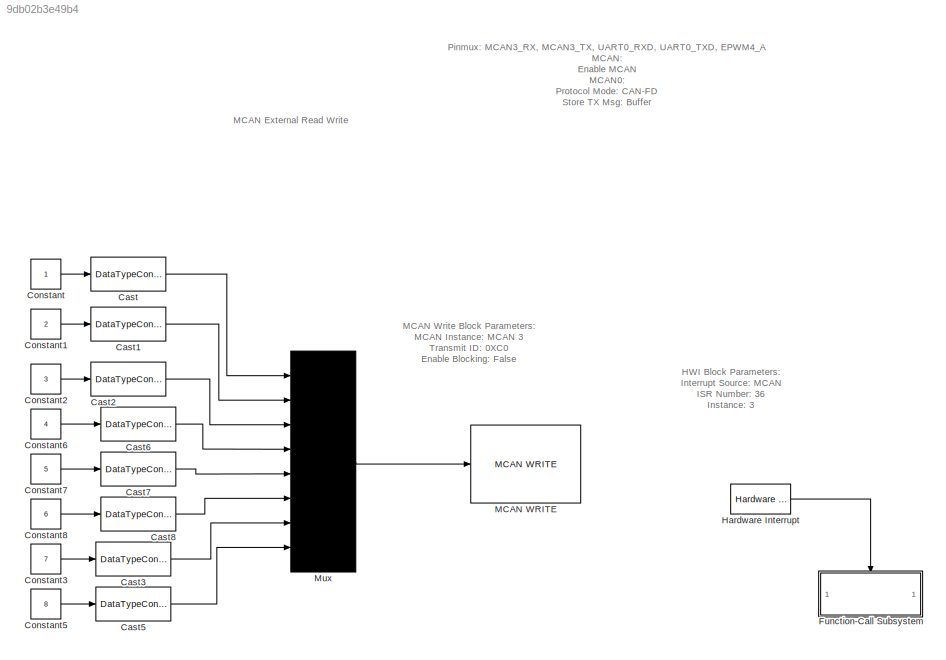
MODEL slx_9db02b3e49b4
KIND model
CONFIG AbsTol = auto
CONFIG EnableMultiTasking = off
CONFIG FixedStep = auto
CONFIG MaxStep = auto
CONFIG MinStep = auto
CONFIG RelTol = 1e-3
CONFIG SampleTimeConstraint = Unconstrained
CONFIG SolverName = FixedStepAuto
CONFIG StartTime = 0.0
CONFIG StopTime = 10.0
BLOCK [DataTypeConversion] Cast
  OutDataTypeStr = uint8
  RndMeth = Floor
  SaturateOnIntegerOverflow = off
BLOCK [DataTypeConversion] Cast1
  OutDataTypeStr = uint8
  RndMeth = Floor
  SaturateOnIntegerOverflow = off
BLOCK [DataTypeConversion] Cast2
  OutDataTypeStr = uint8
  RndMeth = Floor
  SaturateOnIntegerOverflow = off
BLOCK [DataTypeConversion] Cast3
  OutDataTypeStr = uint8
  RndMeth = Floor
  SaturateOnIntegerOverflow = off
BLOCK [DataTypeConversion] Cast5
  OutDataTypeStr = uint8
  RndMeth = Floor
  SaturateOnIntegerOverflow = off
BLOCK [DataTypeConversion] Cast6
  OutDataTypeStr = uint8
  RndMeth = Floor
  SaturateOnIntegerOverflow = off
BLOCK [DataTypeConversion] Cast7
  OutDataTypeStr = uint8
  RndMeth = Floor
  SaturateOnIntegerOverflow = off
BLOCK [DataTypeConversion] Cast8
  OutDataTypeStr = uint8
  RndMeth = Floor
  SaturateOnIntegerOverflow = off
BLOCK [Constant] Constant
BLOCK [Constant] Constant1
  Value = 2
BLOCK [Constant] Constant2
  Value = 3
BLOCK [Constant] Constant3
  Value = 7
BLOCK [Constant] Constant5
  Value = 8
BLOCK [Constant] Constant6
  Value = 4
BLOCK [Constant] Constant7
  Value = 5
BLOCK [Constant] Constant8
  Value = 6
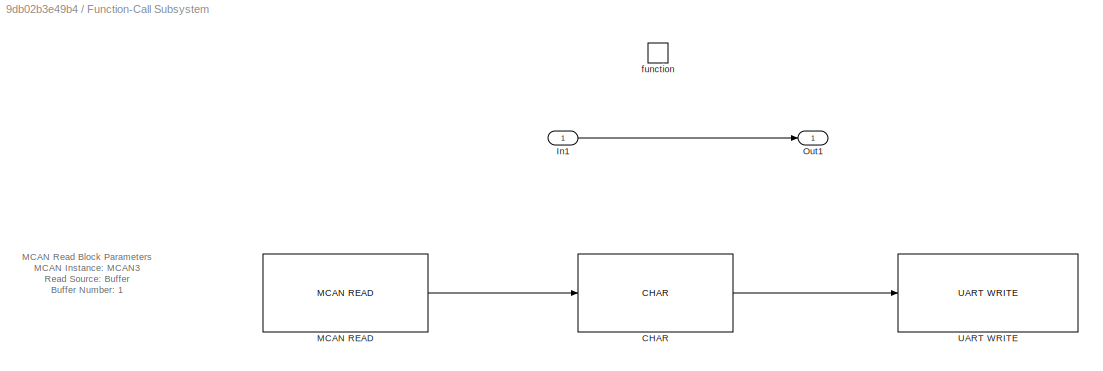
BLOCK [SubSystem] Function-Call Subsystem
  TreatAsAtomicUnit = on
BLOCK [Reference] Function-Call Subsystem/CHAR  REF=peripheral_library_blocks_am263px/CHAR
  SourceBlock = peripheral_library_blocks_am263px/CHAR
  SourceType = CHAR
BLOCK [Inport] Function-Call Subsystem/In1
BLOCK [Reference] Function-Call Subsystem/MCAN READ  REF=peripheral_library_blocks_am263px/MCAN READ
  SourceBlock = peripheral_library_blocks_am263px/MCAN READ
  SourceType = MCAN_READ_AM263PX
BLOCK [Outport] Function-Call Subsystem/Out1
BLOCK [Reference] Function-Call Subsystem/UART WRITE  REF=peripheral_library_blocks_am263px/UART WRITE
  SourceBlock = peripheral_library_blocks_am263px/UART WRITE
  SourceType = UART_WRITE_AM263PX
BLOCK [TriggerPort] Function-Call Subsystem/function
  StatesWhenEnabling = held
  TriggerType = function-call
  VariantControl = (inherit)
BLOCK [Reference] Hardware Interrupt  REF=HWI_lib/Hardware Interrupt
  SourceBlock = HWI_lib/Hardware Interrupt
  SourceProductName = Embedded Coder Support Package for AM263x - HWI Block
BLOCK [Reference] MCAN WRITE  REF=peripheral_library_blocks_am263px/MCAN WRITE
  SourceBlock = peripheral_library_blocks_am263px/MCAN WRITE
  SourceType = MCAN_WRITE_AM263PX
BLOCK [Mux] Mux
  DisplayOption = bar
  Inputs = 8
ANNOTATION (root): HWI Block Parameters: Interrupt Source: MCAN ISR Number: 36 Instance : 3
ANNOTATION (root): MCAN Write Block Parameters : MCAN Instance : MCAN 3 Transmit ID: 0XC0 Enable Blocking: False
ANNOTATION (root): Pinmux: MCAN3_RX, MCAN3_TX, UART0_RXD, UART0_TXD, EPWM4_A MCAN: Enable MCAN MCAN0: Protocol Mode: CAN-FD Store TX Msg: Buffer TX Buffer Number: 0 Enable Internal Loppback: False Enable GPIO-based transceiver: True Number of elements in TX buffer: 1 Number of elements in RX buffer: 1 Enable Standard Filter: True Number of standard filter elements: 1 Standard filter element type: Range Filter SFID1:...<+65ch>
ANNOTATION (root): MCAN External Read Write
ANNOTATION Function-Call Subsystem: MCAN Read Block Parameters MCAN Instance: MCAN3 Read Source: Buffer Buffer Number: 1
LINE Cast1:1 -> Mux:2
LINE Cast2:1 -> Mux:3
LINE Cast3:1 -> Mux:7
LINE Cast5:1 -> Mux:8
LINE Cast6:1 -> Mux:4
LINE Cast7:1 -> Mux:5
LINE Cast8:1 -> Mux:6
LINE Cast:1 -> Mux:1
LINE Constant1:1 -> Cast1:1
LINE Constant2:1 -> Cast2:1
LINE Constant3:1 -> Cast3:1
LINE Constant5:1 -> Cast5:1
LINE Constant6:1 -> Cast6:1
LINE Constant7:1 -> Cast7:1
LINE Constant8:1 -> Cast8:1
LINE Constant:1 -> Cast:1
LINE Function-Call Subsystem/CHAR:1 -> Function-Call Subsystem/UART WRITE:1
LINE Function-Call Subsystem/In1:1 -> Function-Call Subsystem/Out1:1
LINE Function-Call Subsystem/MCAN READ:1 -> Function-Call Subsystem/CHAR:1
LINE Hardware Interrupt:1 -> Function-Call Subsystem:trigger
LINE Mux:1 -> MCAN WRITE:1
